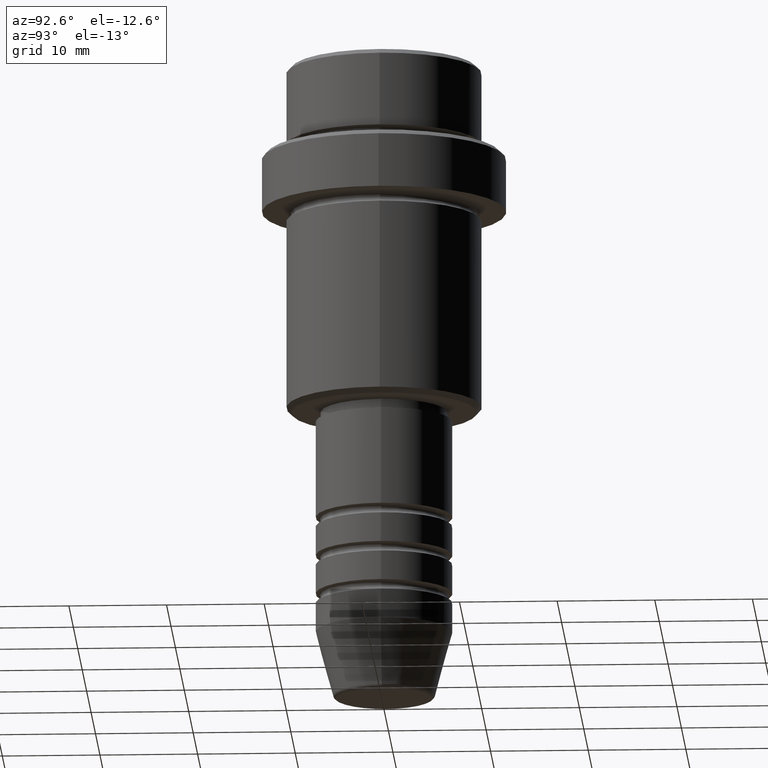
[diagram: clean part render]
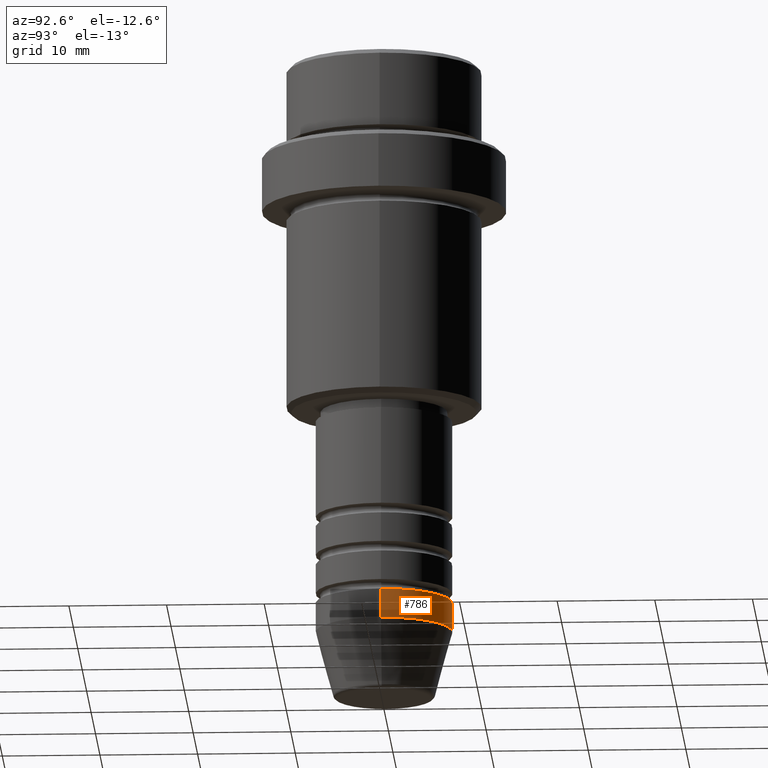
[diagram: same view with one face highlighted and labeled with its STEP entity id]
A machine part, auxiliary view. The second image highlights one B-rep face of the part: STEP entity #786.
In plain terms, the highlighted cylindrical surface (partial cylindrical patch) has radius 7 mm, axis along (-0, -0, 1).
Its self-contained STEP definition (entity closure, byte-faithful):
#35 = DIRECTION ( 'NONE',  ( -0.000000000000000000, -0.000000000000000000, 1.000000000000000000 ) ) ;
#47 = ORIENTED_EDGE ( 'NONE', *, *, #1312, .T. ) ;
#54 = CARTESIAN_POINT ( 'NONE',  ( -7.000000000000000000, 8.572527594031473190E-16, -59.00000000000000000 ) ) ;
#98 = FACE_OUTER_BOUND ( 'NONE', #872, .T. ) ;
#166 = CARTESIAN_POINT ( 'NONE',  ( 7.000000000000000000, 0.000000000000000000, 0.000000000000000000 ) ) ;
#173 = DIRECTION ( 'NONE',  ( -0.000000000000000000, -0.000000000000000000, 1.000000000000000000 ) ) ;
#187 = VERTEX_POINT ( 'NONE', #929 ) ;
#338 = VECTOR ( 'NONE', #1304, 1000.000000000000000 ) ;
#397 = CIRCLE ( 'NONE', #919, 7.000000000000000000 ) ;
#428 = DIRECTION ( 'NONE',  ( -0.000000000000000000, -0.000000000000000000, 1.000000000000000000 ) ) ;
#536 = ORIENTED_EDGE ( 'NONE', *, *, #1381, .F. ) ;
#545 = CARTESIAN_POINT ( 'NONE',  ( -7.000000000000000000, 8.572527594031473190E-16, 0.000000000000000000 ) ) ;
#610 = DIRECTION ( 'NONE',  ( 1.000000000000000000, 0.000000000000000000, 0.000000000000000000 ) ) ;
#670 = VERTEX_POINT ( 'NONE', #54 ) ;
#693 = CARTESIAN_POINT ( 'NONE',  ( 7.000000000000000000, 0.000000000000000000, -55.99999999999999289 ) ) ;
#706 = LINE ( 'NONE', #166, #1248 ) ;
#723 = CARTESIAN_POINT ( 'NONE',  ( 0.000000000000000000, 0.000000000000000000, -59.00000000000000000 ) ) ;
#783 = CARTESIAN_POINT ( 'NONE',  ( 0.000000000000000000, 0.000000000000000000, -55.99999999999999289 ) ) ;
#786 = ADVANCED_FACE ( 'NONE', ( #98 ), #1403, .T. ) ;
#809 = EDGE_CURVE ( 'NONE', #670, #187, #1091, .T. ) ;
#837 = AXIS2_PLACEMENT_3D ( 'NONE', #723, #173, #610 ) ;
#872 = EDGE_LOOP ( 'NONE', ( #47, #980, #938, #536 ) ) ;
#904 = DIRECTION ( 'NONE',  ( 1.000000000000000000, 0.000000000000000000, 0.000000000000000000 ) ) ;
#919 = AXIS2_PLACEMENT_3D ( 'NONE', #783, #35, #1018 ) ;
#929 = CARTESIAN_POINT ( 'NONE',  ( -7.000000000000000000, 8.572527594031473190E-16, -55.99999999999999289 ) ) ;
#933 = CIRCLE ( 'NONE', #837, 7.000000000000000000 ) ;
#938 = ORIENTED_EDGE ( 'NONE', *, *, #1133, .F. ) ;
#973 = CARTESIAN_POINT ( 'NONE',  ( 0.000000000000000000, 0.000000000000000000, 0.000000000000000000 ) ) ;
#980 = ORIENTED_EDGE ( 'NONE', *, *, #809, .T. ) ;
#1018 = DIRECTION ( 'NONE',  ( 1.000000000000000000, 0.000000000000000000, 0.000000000000000000 ) ) ;
#1041 = DIRECTION ( 'NONE',  ( -0.000000000000000000, -0.000000000000000000, 1.000000000000000000 ) ) ;
#1073 = AXIS2_PLACEMENT_3D ( 'NONE', #973, #428, #904 ) ;
#1091 = LINE ( 'NONE', #545, #338 ) ;
#1133 = EDGE_CURVE ( 'NONE', #1324, #187, #397, .T. ) ;
#1248 = VECTOR ( 'NONE', #1041, 1000.000000000000000 ) ;
#1280 = CARTESIAN_POINT ( 'NONE',  ( 7.000000000000000000, 0.000000000000000000, -59.00000000000000000 ) ) ;
#1304 = DIRECTION ( 'NONE',  ( -0.000000000000000000, -0.000000000000000000, 1.000000000000000000 ) ) ;
#1312 = EDGE_CURVE ( 'NONE', #1394, #670, #933, .T. ) ;
#1324 = VERTEX_POINT ( 'NONE', #693 ) ;
#1381 = EDGE_CURVE ( 'NONE', #1394, #1324, #706, .T. ) ;
#1394 = VERTEX_POINT ( 'NONE', #1280 ) ;
#1403 = CYLINDRICAL_SURFACE ( 'NONE', #1073, 7.000000000000000000 ) ;